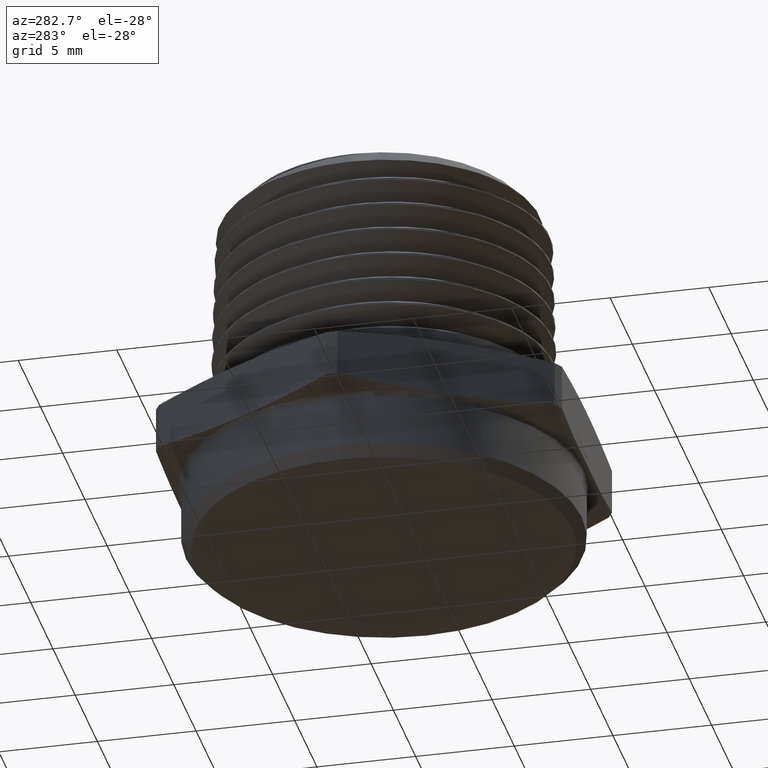
[diagram: clean part render]
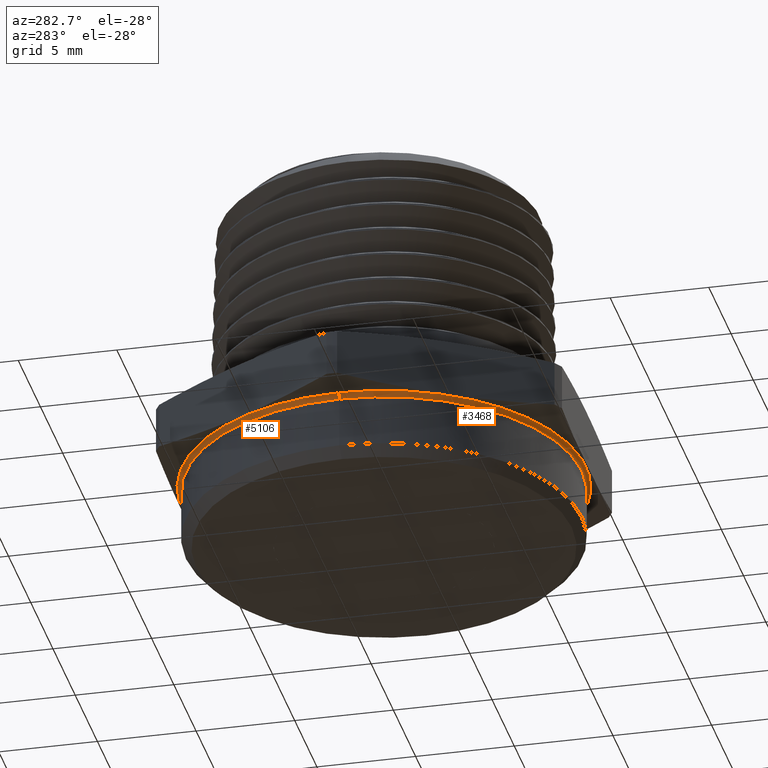
[diagram: same view with one multi-face feature highlighted, each face labeled with its STEP entity id]
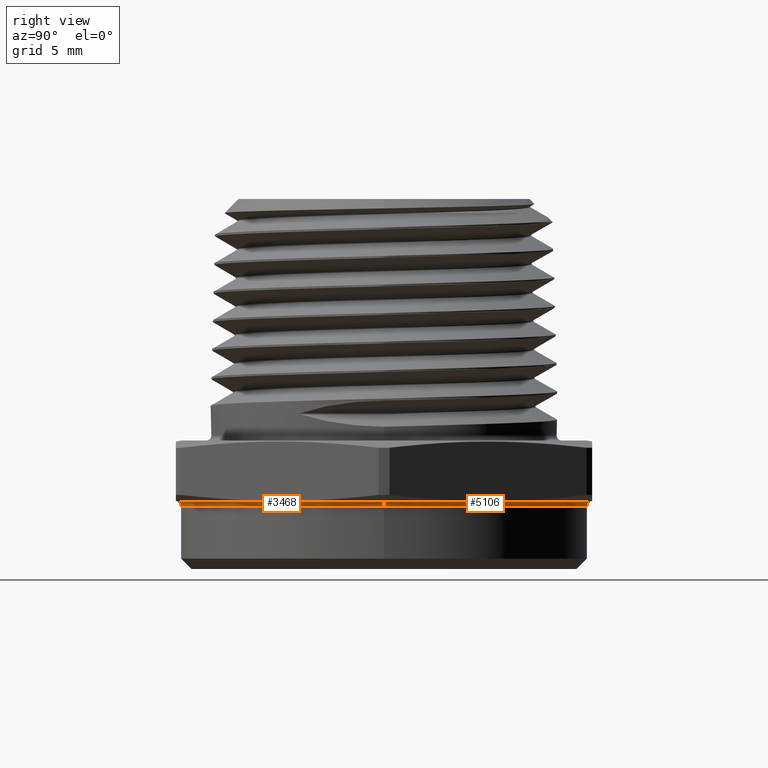
[diagram: same view with one multi-face feature highlighted, each face labeled with its STEP entity id]
A machine part, auxiliary view. The highlighted faces form ONE feature: a constant-radius fillet chain: 2 tangent blend faces with common blend radius 0.254 mm. The faces share edges in the B-rep.
A second angle (right view) of the same feature is appended — it is thin or edge-on in the first view.
Their STEP definitions:
[1] entity #3468 (Torus):
#566 = CARTESIAN_POINT ( 'NONE',  ( 0.4050000000000001400, 4.959819536546781800E-017, -0.008097840331950248800 ) ) ;
#567 = DIRECTION ( 'NONE',  ( -1.224646799147353200E-016, 1.000000000000000000, 7.498798913309275700E-033 ) ) ;
#568 = DIRECTION ( 'NONE',  ( -1.000000000000000000, -1.224646799147346800E-016, 0.0000000000000000000 ) ) ;
#570 = CARTESIAN_POINT ( 'NONE',  ( 4.516955305409156800E-018, 0.0000000000000000000, 0.001683635675388010700 ) ) ;
#571 = DIRECTION ( 'NONE',  ( 1.224646799147351200E-016, 0.0000000000000000000, 1.000000000000000000 ) ) ;
#572 = DIRECTION ( 'NONE',  ( 1.000000000000000000, 0.0000000000000000000, -1.224922254911728200E-016 ) ) ;
#574 = CARTESIAN_POINT ( 'NONE',  ( -0.4050000000000001400, 0.0000000000000000000, -0.008097840331950198500 ) ) ;
#575 = DIRECTION ( 'NONE',  ( 0.0000000000000000000, -1.000000000000000000, 0.0000000000000000000 ) ) ;
#576 = DIRECTION ( 'NONE',  ( 0.0000000000000000000, 0.0000000000000000000, -1.000000000000000000 ) ) ;
#1895 = CARTESIAN_POINT ( 'NONE',  ( 0.0000000000000000000, 0.0000000000000000000, -0.008097840331950215800 ) ) ;
#1896 = DIRECTION ( 'NONE',  ( -6.123233995736756200E-017, -0.0000000000000000000, -1.000000000000000000 ) ) ;
#1897 = DIRECTION ( 'NONE',  ( -1.000000000000000000, 0.0000000000000000000, 6.213657422298065900E-017 ) ) ;
#2896 = CARTESIAN_POINT ( 'NONE',  ( -0.3950000000000000700, 4.837354856632045600E-017, -0.008097840331950191500 ) ) ;
#2921 = CARTESIAN_POINT ( 'NONE',  ( 0.4029208830918232200, 0.0000000000000000000, 0.001683635675387961700 ) ) ;
#2924 = CARTESIAN_POINT ( 'NONE',  ( -0.4029208830918232200, 4.934357697880262100E-017, 0.001683635675388059900 ) ) ;
#2942 = CARTESIAN_POINT ( 'NONE',  ( 0.3950000000000000700, 0.0000000000000000000, -0.008097840331950240100 ) ) ;
#3468 = ADVANCED_FACE ( 'NONE', ( #4482 ), #4476, .F. ) ;
#3523 = AXIS2_PLACEMENT_3D ( 'NONE', #566, #567, #568 ) ;
#3524 = AXIS2_PLACEMENT_3D ( 'NONE', #570, #571, #572 ) ;
#3525 = AXIS2_PLACEMENT_3D ( 'NONE', #574, #575, #576 ) ;
#3549 = AXIS2_PLACEMENT_3D ( 'NONE', #1895, #1896, #1897 ) ;
#3941 = EDGE_CURVE ( 'NONE', #4452, #4431, #4553, .T. ) ;
#3942 = EDGE_CURVE ( 'NONE', #4434, #4431, #4550, .T. ) ;
#3943 = EDGE_CURVE ( 'NONE', #4405, #4434, #4555, .T. ) ;
#4020 = AXIS2_PLACEMENT_3D ( 'NONE', #4104, #4106, #4111 ) ;
#4040 = EDGE_CURVE ( 'NONE', #4452, #4405, #4629, .T. ) ;
#4104 = CARTESIAN_POINT ( 'NONE',  ( 3.918012641242989300E-018, 0.0000000000000000000, -0.008097840331950224500 ) ) ;
#4106 = DIRECTION ( 'NONE',  ( -6.123233995736756200E-017, -0.0000000000000000000, -1.000000000000000000 ) ) ;
#4111 = DIRECTION ( 'NONE',  ( -1.000000000000000000, 0.0000000000000000000, 6.123233995736756200E-017 ) ) ;
#4227 = ORIENTED_EDGE ( 'NONE', *, *, #4040, .F. ) ;
#4228 = ORIENTED_EDGE ( 'NONE', *, *, #3941, .T. ) ;
#4229 = ORIENTED_EDGE ( 'NONE', *, *, #3942, .F. ) ;
#4230 = ORIENTED_EDGE ( 'NONE', *, *, #3943, .F. ) ;
#4405 = VERTEX_POINT ( 'NONE', #2896 ) ;
#4431 = VERTEX_POINT ( 'NONE', #2921 ) ;
#4434 = VERTEX_POINT ( 'NONE', #2924 ) ;
#4452 = VERTEX_POINT ( 'NONE', #2942 ) ;
#4476 = TOROIDAL_SURFACE ( 'NONE', #4020, 0.4050000000000001400, 0.01000000000000000000 ) ;
#4482 = FACE_OUTER_BOUND ( 'NONE', #5215, .T. ) ;
#4550 = CIRCLE ( 'NONE', #3524, 0.4029208830918225600 ) ;
#4553 = CIRCLE ( 'NONE', #3523, 0.01000000000000003000 ) ;
#4555 = CIRCLE ( 'NONE', #3525, 0.01000000000000000000 ) ;
#4629 = CIRCLE ( 'NONE', #3549, 0.3950000000000000700 ) ;
#5215 = EDGE_LOOP ( 'NONE', ( #4227, #4228, #4229, #4230 ) ) ;
[2] entity #5106 (Torus):
#84 = EDGE_LOOP ( 'NONE', ( #181, #180, #179, #178 ) ) ;
#178 = ORIENTED_EDGE ( 'NONE', *, *, #3947, .F. ) ;
#179 = ORIENTED_EDGE ( 'NONE', *, *, #3943, .T. ) ;
#180 = ORIENTED_EDGE ( 'NONE', *, *, #3945, .F. ) ;
#181 = ORIENTED_EDGE ( 'NONE', *, *, #3941, .F. ) ;
#566 = CARTESIAN_POINT ( 'NONE',  ( 0.4050000000000001400, 4.959819536546781800E-017, -0.008097840331950248800 ) ) ;
#567 = DIRECTION ( 'NONE',  ( -1.224646799147353200E-016, 1.000000000000000000, 7.498798913309275700E-033 ) ) ;
#568 = DIRECTION ( 'NONE',  ( -1.000000000000000000, -1.224646799147346800E-016, 0.0000000000000000000 ) ) ;
#574 = CARTESIAN_POINT ( 'NONE',  ( -0.4050000000000001400, 0.0000000000000000000, -0.008097840331950198500 ) ) ;
#575 = DIRECTION ( 'NONE',  ( 0.0000000000000000000, -1.000000000000000000, 0.0000000000000000000 ) ) ;
#576 = DIRECTION ( 'NONE',  ( 0.0000000000000000000, 0.0000000000000000000, -1.000000000000000000 ) ) ;
#579 = CARTESIAN_POINT ( 'NONE',  ( 0.0000000000000000000, 0.0000000000000000000, -0.008097840331950215800 ) ) ;
#580 = DIRECTION ( 'NONE',  ( -6.123233995736756200E-017, -0.0000000000000000000, -1.000000000000000000 ) ) ;
#581 = DIRECTION ( 'NONE',  ( -1.000000000000000000, 0.0000000000000000000, 6.213657422298065900E-017 ) ) ;
#585 = CARTESIAN_POINT ( 'NONE',  ( 4.516955305409156800E-018, 0.0000000000000000000, 0.001683635675388010700 ) ) ;
#586 = DIRECTION ( 'NONE',  ( 1.224646799147351200E-016, 0.0000000000000000000, 1.000000000000000000 ) ) ;
#587 = DIRECTION ( 'NONE',  ( 1.000000000000000000, 0.0000000000000000000, -1.224922254911728200E-016 ) ) ;
#1116 = AXIS2_PLACEMENT_3D ( 'NONE', #3052, #3054, #3057 ) ;
#2896 = CARTESIAN_POINT ( 'NONE',  ( -0.3950000000000000700, 4.837354856632045600E-017, -0.008097840331950191500 ) ) ;
#2921 = CARTESIAN_POINT ( 'NONE',  ( 0.4029208830918232200, 0.0000000000000000000, 0.001683635675387961700 ) ) ;
#2924 = CARTESIAN_POINT ( 'NONE',  ( -0.4029208830918232200, 4.934357697880262100E-017, 0.001683635675388059900 ) ) ;
#2942 = CARTESIAN_POINT ( 'NONE',  ( 0.3950000000000000700, 0.0000000000000000000, -0.008097840331950240100 ) ) ;
#3052 = CARTESIAN_POINT ( 'NONE',  ( 3.918012641242989300E-018, 0.0000000000000000000, -0.008097840331950224500 ) ) ;
#3054 = DIRECTION ( 'NONE',  ( -6.123233995736756200E-017, -0.0000000000000000000, -1.000000000000000000 ) ) ;
#3057 = DIRECTION ( 'NONE',  ( -1.000000000000000000, 0.0000000000000000000, 6.123233995736756200E-017 ) ) ;
#3523 = AXIS2_PLACEMENT_3D ( 'NONE', #566, #567, #568 ) ;
#3525 = AXIS2_PLACEMENT_3D ( 'NONE', #574, #575, #576 ) ;
#3526 = AXIS2_PLACEMENT_3D ( 'NONE', #579, #580, #581 ) ;
#3527 = AXIS2_PLACEMENT_3D ( 'NONE', #585, #586, #587 ) ;
#3941 = EDGE_CURVE ( 'NONE', #4452, #4431, #4553, .T. ) ;
#3943 = EDGE_CURVE ( 'NONE', #4405, #4434, #4555, .T. ) ;
#3945 = EDGE_CURVE ( 'NONE', #4405, #4452, #4556, .T. ) ;
#3947 = EDGE_CURVE ( 'NONE', #4431, #4434, #4560, .T. ) ;
#4405 = VERTEX_POINT ( 'NONE', #2896 ) ;
#4431 = VERTEX_POINT ( 'NONE', #2921 ) ;
#4434 = VERTEX_POINT ( 'NONE', #2924 ) ;
#4452 = VERTEX_POINT ( 'NONE', #2942 ) ;
#4553 = CIRCLE ( 'NONE', #3523, 0.01000000000000003000 ) ;
#4555 = CIRCLE ( 'NONE', #3525, 0.01000000000000000000 ) ;
#4556 = CIRCLE ( 'NONE', #3526, 0.3950000000000000700 ) ;
#4560 = CIRCLE ( 'NONE', #3527, 0.4029208830918225600 ) ;
#4721 = FACE_OUTER_BOUND ( 'NONE', #84, .T. ) ;
#4724 = TOROIDAL_SURFACE ( 'NONE', #1116, 0.4050000000000001400, 0.01000000000000000000 ) ;
#5106 = ADVANCED_FACE ( 'NONE', ( #4721 ), #4724, .F. ) ;